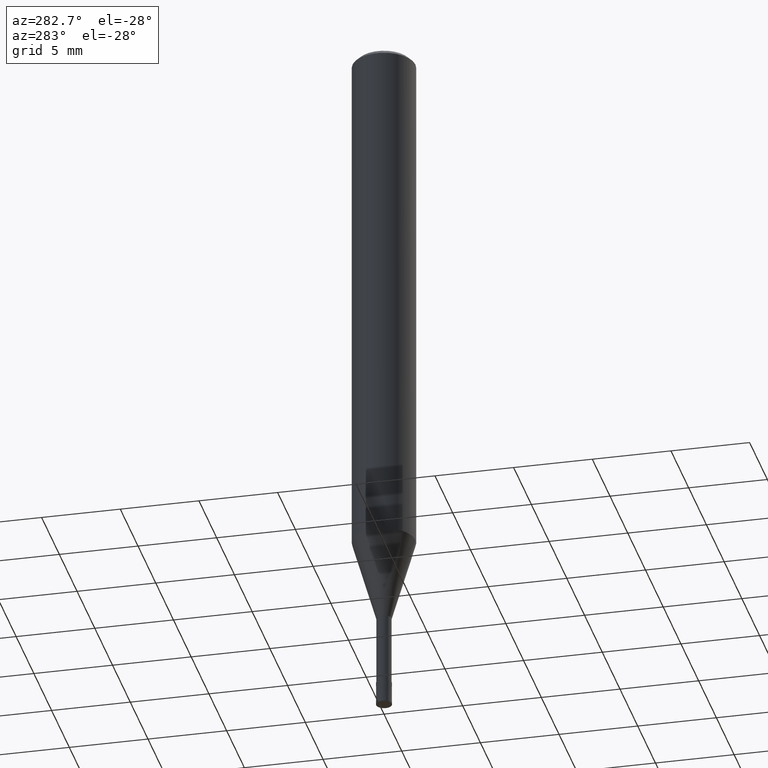
[diagram: clean part render]
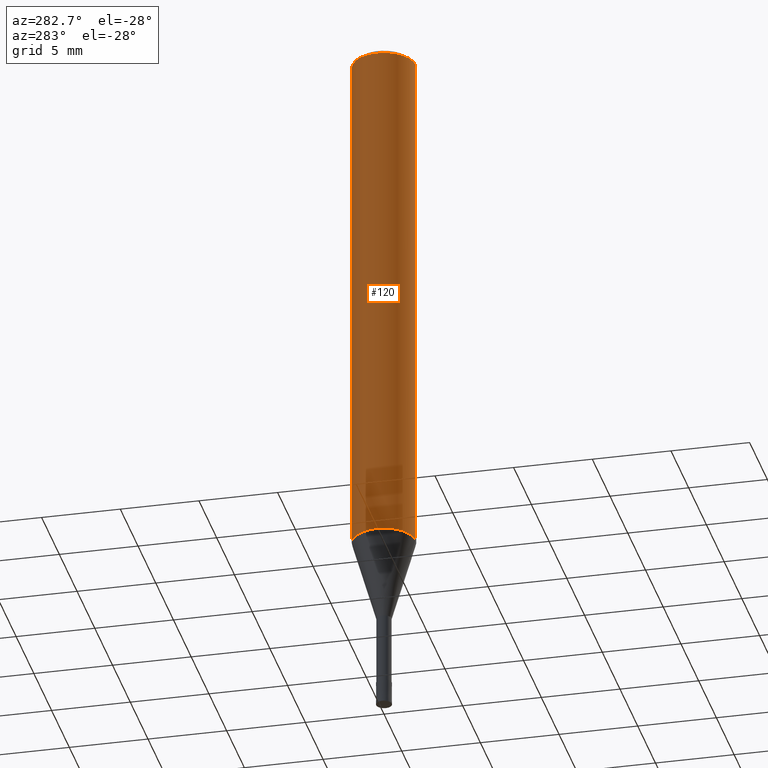
[diagram: same view with one face highlighted and labeled with its STEP entity id]
A machine part, auxiliary view. The second image highlights one B-rep face of the part: STEP entity #120.
In plain terms, the highlighted cylindrical surface (edge-blend (fillet) strip) has radius 2 mm, axis along (-0, -0, 1).
Its self-contained STEP definition (entity closure, byte-faithful):
#96=EDGE_CURVE('',#204,#196,#233,.T.);
#106=VERTEX_POINT('',#243);
#116=EDGE_CURVE('',#106,#204,#253,.T.);
#120=ADVANCED_FACE('',(#258),#259,.T.);
#122=VERTEX_POINT('',#261);
#186=EDGE_CURVE('',#196,#122,#335,.T.);
#194=EDGE_CURVE('',#106,#122,#344,.T.);
#196=VERTEX_POINT('',#346);
#204=VERTEX_POINT('',#357);
#233=CIRCLE('',#380,2.0);
#243=CARTESIAN_POINT('',(2.44921270764475E-016,-2.0,-33.682));
#253=LINE('',#409,#410);
#258=FACE_OUTER_BOUND('',#415,.T.);
#259=CYLINDRICAL_SURFACE('',#416,2.0);
#261=CARTESIAN_POINT('',(0.0,2.0,-33.682));
#335=LINE('',#508,#509);
#344=CIRCLE('',#520,2.0);
#346=CARTESIAN_POINT('',(0.0,2.0,-0.299999999999997));
#357=CARTESIAN_POINT('',(2.44921270764475E-016,-2.0,-0.299999999999997));
#380=AXIS2_PLACEMENT_3D('',#545,#546,#547);
#409=CARTESIAN_POINT('',(2.44921270764475E-016,-2.0,-16.991));
#410=VECTOR('',#557,1.0);
#415=EDGE_LOOP('',(#567,#568,#569,#570));
#416=AXIS2_PLACEMENT_3D('',#571,#572,#573);
#508=CARTESIAN_POINT('',(-2.44921270764475E-016,2.0,-16.991));
#509=VECTOR('',#676,1.0);
#520=AXIS2_PLACEMENT_3D('',#688,#689,#690);
#545=CARTESIAN_POINT('',(0.0,0.0,-0.299999999999997));
#546=DIRECTION('',(0.0,0.0,-1.0));
#547=DIRECTION('',(0.0,1.0,0.0));
#557=DIRECTION('',(-0.0,-0.0,1.0));
#567=ORIENTED_EDGE('',*,*,#186,.T.);
#568=ORIENTED_EDGE('',*,*,#194,.F.);
#569=ORIENTED_EDGE('',*,*,#116,.T.);
#570=ORIENTED_EDGE('',*,*,#96,.T.);
#571=CARTESIAN_POINT('',(0.0,0.0,-16.991));
#572=DIRECTION('',(-0.0,-0.0,1.0));
#573=DIRECTION('',(0.0,1.0,0.0));
#676=DIRECTION('',(0.0,0.0,-1.0));
#688=CARTESIAN_POINT('',(0.0,0.0,-33.682));
#689=DIRECTION('',(0.0,0.0,-1.0));
#690=DIRECTION('',(0.0,1.0,0.0));